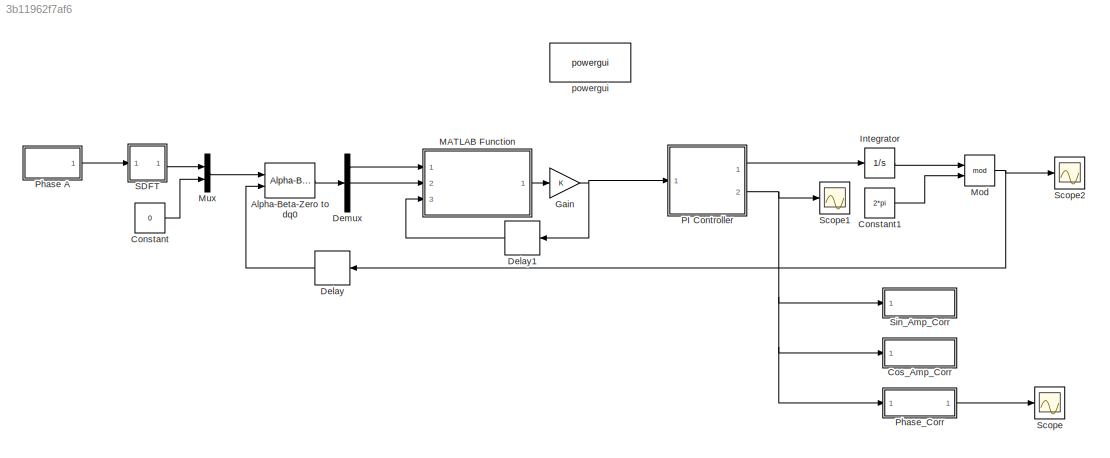
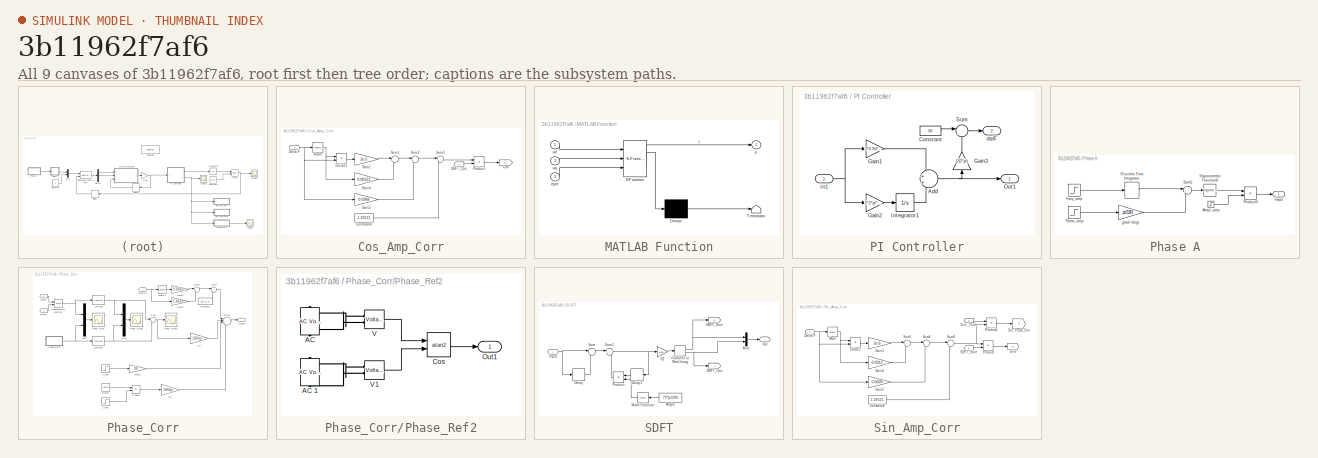
[diagram: thumbnail index - all 9 canvases of the model, root first then tree order]
MODEL slx_3b11962f7af6
KIND model
CONFIG AbsTol = auto
CONFIG EnableMultiTasking = off
CONFIG FixedStep = auto
CONFIG MaxStep = auto
CONFIG MinStep = auto
CONFIG RelTol = 1e-3
CONFIG SampleTimeConstraint = Unconstrained
CONFIG SolverName = VariableStepAuto
CONFIG StartTime = 0.0
CONFIG StopTime = 2
BLOCK [Reference] Alpha-Beta-Zero to dq0  REF=spsAlphaBetaZerotodq0Lib/Alpha-Beta-Zero
to dq0
  Ports = [2, 1]
  SourceBlock = spsAlphaBetaZerotodq0Lib/Alpha-Beta-Zero\nto dq0
  SourceProductBaseCode = PS
  SourceType = Alpha-Beta-Zero to dq0 Transformation
BLOCK [Constant] Constant
  Value = 0
BLOCK [Constant] Constant1
  Value = 2*pi
BLOCK [SubSystem] Cos_Amp_Corr
  Ports = [1]
  RequestExecContextInheritance = off
BLOCK [Constant] Cos_Amp_Corr/Constant4
  Value = 1.29521
BLOCK [Goto] Cos_Amp_Corr/Cos
  GotoTag = H1
  TagVisibility = global
BLOCK [Inport] Cos_Amp_Corr/Delta F
BLOCK [Product] Cos_Amp_Corr/Divide1
  Inputs = **
  Ports = [2, 1]
BLOCK [Gain] Cos_Amp_Corr/Gain1
  Gain = 2e-5
  RndMeth = Nearest
BLOCK [Gain] Cos_Amp_Corr/Gain4
  Gain = 0.00121
  RndMeth = Nearest
BLOCK [Gain] Cos_Amp_Corr/Gain5
  Gain = 0.0268
BLOCK [Math] Cos_Amp_Corr/Math 
  Operator = square
  Ports = [1, 1]
  SignedPower = on
BLOCK [Product] Cos_Amp_Corr/Product
  Ports = [2, 1]
BLOCK [From] Cos_Amp_Corr/SDFT_Cos
  GotoTag = C
  TagVisibility = global
BLOCK [Sum] Cos_Amp_Corr/Sum1
  Inputs = |-+
  Ports = [2, 1]
  RndMeth = Nearest
BLOCK [Sum] Cos_Amp_Corr/Sum2
  Inputs = |+-
  Ports = [2, 1]
  RndMeth = Nearest
BLOCK [Sum] Cos_Amp_Corr/Sum3
  Inputs = |++
  Ports = [2, 1]
  RndMeth = Nearest
BLOCK [Delay] Delay
  DelayLength = 1
  InitialCondition = 0
  InputPortMap = u0
  NameLocation = top
  Ports = [1, 1]
BLOCK [Delay] Delay1
  DelayLength = 1
  InitialCondition = 0
  InputPortMap = u0
  NameLocation = top
  Ports = [1, 1]
BLOCK [Demux] Demux
  Outputs = 3
  Ports = [1, 3]
BLOCK [Gain] Gain
BLOCK [Integrator] Integrator
  Ports = [1, 1]
BLOCK [SubSystem] MATLAB Function
  ErrorFcn = Stateflow.Translate.translate
  PermitHierarchicalResolution = ExplicitOnly
  Ports = [3, 1]
  RequestExecContextInheritance = off
  SFBlockType = MATLAB Function
  TreatAsAtomicUnit = on
BLOCK [Demux] MATLAB Function/ Demux 
  Outputs = 1
  Ports = [1, 1]
BLOCK [S-Function] MATLAB Function/ SFunction 
  EnableBusSupport = on
  FunctionName = sf_sfun
  PortCounts = [3 2]
  Ports = [3, 2]
  SFcnIsStateOwnerBlock = off
  SFunctionDeploymentMode = off
  Tag = Stateflow S-Function 1
BLOCK [Terminator] MATLAB Function/ Terminator 
BLOCK [Inport] MATLAB Function/epre
  Port = 3
BLOCK [Inport] MATLAB Function/ud
BLOCK [Inport] MATLAB Function/uq
  Port = 2
BLOCK [Outport] MATLAB Function/y
BLOCK [Math] Mod
  Operator = mod
  Ports = [2, 1]
  SignedPower = on
BLOCK [Mux] Mux
  DisplayOption = bar
  Inputs = 2
  Ports = [2, 1]
BLOCK [SubSystem] PI Controller
  Ports = [1, 2]
  RequestExecContextInheritance = off
BLOCK [Sum] PI Controller/Add
  Ports = [2, 1]
BLOCK [Constant] PI Controller/Constant
  Value = 50
BLOCK [Gain] PI Controller/Gain1
  Gain = 2*0.707*2*pi*6
BLOCK [Gain] PI Controller/Gain2
  Gain = 2*2*pi*pi*36
BLOCK [Gain] PI Controller/Gain3
  Gain = 1/(2*pi)
  NameLocation = right
BLOCK [Inport] PI Controller/In1
BLOCK [Integrator] PI Controller/Integrator1
  Ports = [1, 1]
BLOCK [Outport] PI Controller/Out1
BLOCK [Sum] PI Controller/Sum
  Inputs = |-+
  Ports = [2, 1]
BLOCK [Outport] PI Controller/delF
  Port = 2
BLOCK [SubSystem] Phase A
  Ports = [0, 1]
  RequestExecContextInheritance = off
BLOCK [Step] Phase A/Ampl_step
  After = 230*sqrt(2)
  Before = 230*sqrt(2)
  SampleTime = 0.0001
BLOCK [DiscreteIntegrator] Phase A/Discrete-Time Integrator
  ICPrevOutput = DiscIntNeverNeededParam
  ICPrevScaledInput = DiscIntNeverNeededParam
  Ports = [1, 1]
  SampleTime = -1
BLOCK [Step] Phase A/Freq_step
  After = 2*pi*50
  Before = 2*pi*50
  SampleTime = 0.0001
  VectorParams1D = off
BLOCK [Outport] Phase A/Input
BLOCK [Product] Phase A/Product9
  Ports = [2, 1]
  RndMeth = Zero
BLOCK [Sum] Phase A/Sum6
  InputSameDT = on
  Inputs = |++
  OutDataTypeStr = Inherit: Same as first input
  Ports = [2, 1]
  SaturateOnIntegerOverflow = on
BLOCK [Step] Phase A/Theta_step
  After = 0
  SampleTime = 0.0001
BLOCK [Trigonometry] Phase A/Trigonometric Function8
  Ports = [1, 1]
BLOCK [Gain] Phase A/grad->degr
  Gain = pi/180
  OutDataTypeStr = Inherit: Same as input
  ParamDataTypeStr = Inherit: Same as input
  SaturateOnIntegerOverflow = on
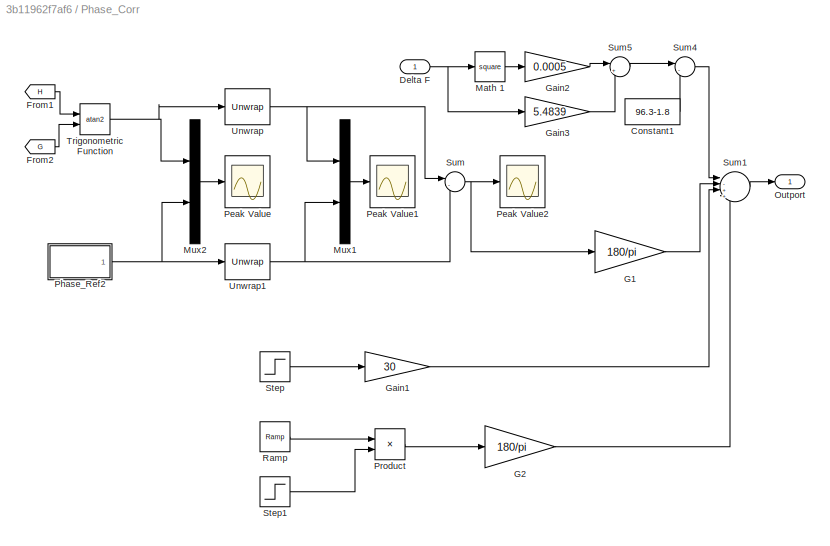
BLOCK [SubSystem] Phase_Corr
  Ports = [1, 1]
  RequestExecContextInheritance = off
BLOCK [Constant] Phase_Corr/Constant1
  Value = 96.3-1.8
BLOCK [Inport] Phase_Corr/Delta F
BLOCK [From] Phase_Corr/From1
  GotoTag = H
BLOCK [From] Phase_Corr/From2
  GotoTag = G
BLOCK [Gain] Phase_Corr/G1
  Gain = 180/pi
BLOCK [Gain] Phase_Corr/G2
  Gain = 180/pi
BLOCK [Gain] Phase_Corr/Gain1
  Gain = 30
  RndMeth = Nearest
BLOCK [Gain] Phase_Corr/Gain2
  Gain = 0.0005
  RndMeth = Nearest
BLOCK [Gain] Phase_Corr/Gain3
  Gain = 5.4839
BLOCK [Math] Phase_Corr/Math 1
  Operator = square
  Ports = [1, 1]
  SignedPower = on
BLOCK [Mux] Phase_Corr/Mux1
  DisplayOption = bar
  Inputs = 2
  Ports = [2, 1]
BLOCK [Mux] Phase_Corr/Mux2
  DisplayOption = bar
  Inputs = 2
  Ports = [2, 1]
BLOCK [Outport] Phase_Corr/Outport
BLOCK [Scope] Phase_Corr/Peak Value
  Floating = off
  NumInputPorts = 1
  Ports = [1]
  ScopeSpecificationString = Simulink.scopes.TimeScopeBlockCfg('CurrentConfiguration', extmgr.ConfigurationSet(extmgr.Configuration('Core','General UI',true),extmgr.Configuration('Core','Source UI',true),extmgr.Configuration('Sources','WiredSimulink',true,'DataLoggingLimitDataPoints',true,'DataLoggingSaveFormat','Array','DataLoggingDecimation','1','DataLoggingDecimateData',true),extmgr.Configuration('Visuals','Time Domain',tr...<+154ch>  <repeated x3 — deduplicated; at blocks: Peak Value, Peak Value1, Peak Value2>
BLOCK [Scope] Phase_Corr/Peak Value1
  Floating = off
  NumInputPorts = 1
  Ports = [1]
BLOCK [Scope] Phase_Corr/Peak Value2
  Floating = off
  NumInputPorts = 1
  Ports = [1]
BLOCK [SubSystem] Phase_Corr/Phase_Ref2
  Ports = [0, 1]
  RequestExecContextInheritance = off
BLOCK [Reference] Phase_Corr/Phase_Ref2/AC   REF=spsACVoltageSourceLib/AC Voltage Source
  NameLocation = right
  Ports = [0, 0, 0, 0, 0, 1, 1]
  SourceBlock = spsACVoltageSourceLib/AC Voltage Source
  SourceProductBaseCode = PS
  SourceType = AC Voltage Source
BLOCK [Reference] Phase_Corr/Phase_Ref2/AC 1  REF=spsACVoltageSourceLib/AC Voltage Source
  NameLocation = right
  Ports = [0, 0, 0, 0, 0, 1, 1]
  SourceBlock = spsACVoltageSourceLib/AC Voltage Source
  SourceProductBaseCode = PS
  SourceType = AC Voltage Source
BLOCK [Trigonometry] Phase_Corr/Phase_Ref2/Cos
  NumberOfIterations = 20
  Operator = atan2
  Ports = [2, 1]
BLOCK [Outport] Phase_Corr/Phase_Ref2/Out1
BLOCK [Reference] Phase_Corr/Phase_Ref2/V  REF=spsVoltageMeasurementLib/Voltage Measurement
  Ports = [0, 1, 0, 0, 0, 2]
  SourceBlock = spsVoltageMeasurementLib/Voltage Measurement
  SourceProductBaseCode = PS
  SourceType = Voltage Measurement
  UserDataPersistent = on
BLOCK [Reference] Phase_Corr/Phase_Ref2/V1  REF=spsVoltageMeasurementLib/Voltage Measurement
  Ports = [0, 1, 0, 0, 0, 2]
  SourceBlock = spsVoltageMeasurementLib/Voltage Measurement
  SourceProductBaseCode = PS
  SourceType = Voltage Measurement
  UserDataPersistent = on
BLOCK [Product] Phase_Corr/Product
  Ports = [2, 1]
BLOCK [Reference] Phase_Corr/Ramp  REF=simulink/Sources/Ramp
  Ports = [0, 1]
  SourceBlock = simulink/Sources/Ramp
  SourceProductBaseCode = SL
  SourceType = Ramp
BLOCK [Step] Phase_Corr/Step
  SampleTime = 1/(10000)
  Time = 0.65
BLOCK [Step] Phase_Corr/Step1
  SampleTime = 1/10000
  Time = 0.65
BLOCK [Sum] Phase_Corr/Sum
  Inputs = |-+
  Ports = [2, 1]
BLOCK [Sum] Phase_Corr/Sum1
  Inputs = |-+++
  Ports = [4, 1]
BLOCK [Sum] Phase_Corr/Sum4
  Inputs = |-+
  Ports = [2, 1]
  RndMeth = Nearest
BLOCK [Sum] Phase_Corr/Sum5
  Inputs = |+-
  Ports = [2, 1]
  RndMeth = Nearest
BLOCK [Trigonometry] Phase_Corr/Trigonometric Function
  Operator = atan2
  Ports = [2, 1]
BLOCK [Reference] Phase_Corr/Unwrap  REF=dspsigops/Unwrap
  Ports = [1, 1]
  SourceBlock = dspsigops/Unwrap
  SourceProductBaseCode = DS
  SourceType = Unwrap
  UserDataPersistent = on
BLOCK [Reference] Phase_Corr/Unwrap1  REF=dspsigops/Unwrap
  Ports = [1, 1]
  SourceBlock = dspsigops/Unwrap
  SourceProductBaseCode = DS
  SourceType = Unwrap
  UserDataPersistent = on
BLOCK [SubSystem] SDFT
  Ports = [1, 1]
  RequestExecContextInheritance = off
BLOCK [Constant] SDFT/Angle
  NameLocation = top
  Value = i*2*pi/200
BLOCK [ComplexToRealImag] SDFT/Complex to Real-Imag
  Ports = [1, 2]
BLOCK [Delay] SDFT/Delay
  DelayLength = 200
  InitialCondition = 0
  InputPortMap = u0
  Ports = [1, 1]
BLOCK [Delay] SDFT/Delay1
  DelayLength = 1
  InitialCondition = 0
  InputPortMap = u0
  NameLocation = top
  Ports = [1, 1]
BLOCK [Gain] SDFT/G2
  Gain = 2/200
BLOCK [Inport] SDFT/Input
BLOCK [Math] SDFT/Math Function
  NameLocation = top
  Ports = [1, 1]
  SignedPower = on
BLOCK [Mux] SDFT/Mux
  DisplayOption = bar
  Inputs = 2
  Ports = [2, 1]
BLOCK [Outport] SDFT/Out
BLOCK [Product] SDFT/Product
  NameLocation = top
  Ports = [2, 1]
BLOCK [Goto] SDFT/SDFT_Cos
  GotoTag = C
  TagVisibility = global
BLOCK [Goto] SDFT/SDFT_Sine
  GotoTag = B
  TagVisibility = global
BLOCK [Sum] SDFT/Sum
  Inputs = |+-
  Ports = [2, 1]
BLOCK [Sum] SDFT/Sum1
  Inputs = |++
  Ports = [2, 1]
BLOCK [Scope] Scope
  Floating = off
  NumInputPorts = 1
  Ports = [1]
  ScopeSpecificationString = Simulink.scopes.TimeScopeBlockCfg('CurrentConfiguration', extmgr.ConfigurationSet(extmgr.Configuration('Core','General UI',true),extmgr.Configuration('Core','Source UI',true),extmgr.Configuration('Sources','WiredSimulink',true,'DataLoggingVariableName','ScopeData1'),extmgr.Configuration('Visuals','Time Domain',true,'SerializedDisplays',{struct('MinYLimReal','-4520.03103','MaxYLimReal','40870.15381...<+1449ch>
BLOCK [Scope] Scope1
  Floating = off
  NumInputPorts = 1
  Ports = [1]
  ScopeSpecificationString = Simulink.scopes.TimeScopeBlockCfg('CurrentConfiguration', extmgr.ConfigurationSet(extmgr.Configuration('Core','General UI',true),extmgr.Configuration('Core','Source UI',true),extmgr.Configuration('Sources','WiredSimulink',true,'DataLoggingVariableName','ScopeData2'),extmgr.Configuration('Visuals','Time Domain',true,'SerializedDisplays',{struct('MinYLimReal','-57.50818','MaxYLimReal','17.57361','YL...<+1434ch>
BLOCK [Scope] Scope2
  Floating = off
  NumInputPorts = 1
  Ports = [1]
  ScopeSpecificationString = Simulink.scopes.TimeScopeBlockCfg('CurrentConfiguration', extmgr.ConfigurationSet(extmgr.Configuration('Core','General UI',true),extmgr.Configuration('Core','Source UI',true),extmgr.Configuration('Sources','WiredSimulink',true,'DataLoggingVariableName','ScopeData3'),extmgr.Configuration('Visuals','Time Domain',true,'SerializedDisplays',{struct('MinYLimReal','-0.7852','MaxYLimReal','7.06679','YLabe...<+1460ch>
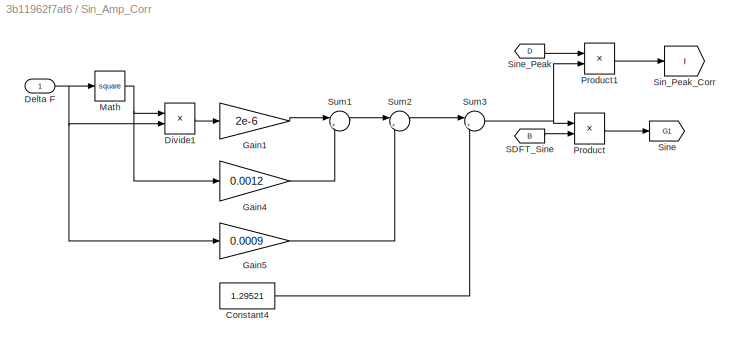
BLOCK [SubSystem] Sin_Amp_Corr
  Ports = [1]
  RequestExecContextInheritance = off
BLOCK [Constant] Sin_Amp_Corr/Constant4
  Value = 1.29521
BLOCK [Inport] Sin_Amp_Corr/Delta F
BLOCK [Product] Sin_Amp_Corr/Divide1
  Inputs = **
  Ports = [2, 1]
BLOCK [Gain] Sin_Amp_Corr/Gain1
  Gain = 2e-6
  RndMeth = Nearest
BLOCK [Gain] Sin_Amp_Corr/Gain4
  Gain = 0.0012
  RndMeth = Nearest
BLOCK [Gain] Sin_Amp_Corr/Gain5
  Gain = 0.0009
BLOCK [Math] Sin_Amp_Corr/Math 
  Operator = square
  Ports = [1, 1]
  SignedPower = on
BLOCK [Product] Sin_Amp_Corr/Product
  Ports = [2, 1]
BLOCK [Product] Sin_Amp_Corr/Product1
  Commented = on
  Ports = [2, 1]
BLOCK [From] Sin_Amp_Corr/SDFT_Sine
  GotoTag = B
  TagVisibility = global
BLOCK [Goto] Sin_Amp_Corr/Sin_Peak_Corr
  Commented = on
  GotoTag = I
  TagVisibility = global
BLOCK [Goto] Sin_Amp_Corr/Sine
  GotoTag = G1
  TagVisibility = global
BLOCK [From] Sin_Amp_Corr/Sine_Peak
  Commented = on
  GotoTag = D
  TagVisibility = global
BLOCK [Sum] Sin_Amp_Corr/Sum1
  Inputs = |++
  Ports = [2, 1]
  RndMeth = Nearest
BLOCK [Sum] Sin_Amp_Corr/Sum2
  Inputs = |+-
  Ports = [2, 1]
  RndMeth = Nearest
BLOCK [Sum] Sin_Amp_Corr/Sum3
  Inputs = |++
  Ports = [2, 1]
  RndMeth = Nearest
BLOCK [Reference] powergui  REF=spspowerguiLib/powergui
  Ports = []
  Priority = 1
  SourceBlock = spspowerguiLib/powergui
  SourceProductBaseCode = PS
  SourceType = PSB option menu block
LINE Alpha-Beta-Zero to dq0:1 -> Demux:1
LINE Constant1:1 -> Mod:2
LINE Constant:1 -> Mux:2
LINE Cos_Amp_Corr/Constant4:1 -> Cos_Amp_Corr/Sum3:2
NET Cos_Amp_Corr/Delta F:1 -> Cos_Amp_Corr/Divide1:2, Cos_Amp_Corr/Gain5:1, Cos_Amp_Corr/Math :1
LINE Cos_Amp_Corr/Divide1:1 -> Cos_Amp_Corr/Gain1:1
LINE Cos_Amp_Corr/Gain1:1 -> Cos_Amp_Corr/Sum1:1
LINE Cos_Amp_Corr/Gain4:1 -> Cos_Amp_Corr/Sum1:2
LINE Cos_Amp_Corr/Gain5:1 -> Cos_Amp_Corr/Sum2:2
NET Cos_Amp_Corr/Math :1 -> Cos_Amp_Corr/Divide1:1, Cos_Amp_Corr/Gain4:1
LINE Cos_Amp_Corr/Product:1 -> Cos_Amp_Corr/Cos:1
LINE Cos_Amp_Corr/SDFT_Cos:1 -> Cos_Amp_Corr/Product:2
LINE Cos_Amp_Corr/Sum1:1 -> Cos_Amp_Corr/Sum2:1
LINE Cos_Amp_Corr/Sum2:1 -> Cos_Amp_Corr/Sum3:1
LINE Cos_Amp_Corr/Sum3:1 -> Cos_Amp_Corr/Product:1
LINE Delay1:1 -> MATLAB Function:3
LINE Delay:1 -> Alpha-Beta-Zero to dq0:2
LINE Demux:1 -> MATLAB Function:1
LINE Demux:2 -> MATLAB Function:2
NET Gain:1 -> Delay1:1, PI Controller:1
LINE Integrator:1 -> Mod:1
LINE MATLAB Function:1 -> Gain:1
NET Mod:1 -> Delay:1, Scope2:1
LINE Mux:1 -> Alpha-Beta-Zero to dq0:1
NET PI Controller/Add:1 -> PI Controller/Gain3:1, PI Controller/Out1:1
LINE PI Controller/Constant:1 -> PI Controller/Sum:1
LINE PI Controller/Gain1:1 -> PI Controller/Add:1
LINE PI Controller/Gain2:1 -> PI Controller/Integrator1:1
LINE PI Controller/Gain3:1 -> PI Controller/Sum:2
NET PI Controller/In1:1 -> PI Controller/Gain1:1, PI Controller/Gain2:1
LINE PI Controller/Integrator1:1 -> PI Controller/Add:2
LINE PI Controller/Sum:1 -> PI Controller/delF:1
LINE PI Controller:1 -> Integrator:1
NET PI Controller:2 -> Cos_Amp_Corr:1, Phase_Corr:1, Scope1:1, Sin_Amp_Corr:1
LINE Phase A/Ampl_step:1 -> Phase A/Product9:2
LINE Phase A/Discrete-Time Integrator:1 -> Phase A/Sum6:1
LINE Phase A/Freq_step:1 -> Phase A/Discrete-Time Integrator:1
LINE Phase A/Product9:1 -> Phase A/Input:1
LINE Phase A/Sum6:1 -> Phase A/Trigonometric Function8:1
LINE Phase A/Theta_step:1 -> Phase A/grad->degr:1
LINE Phase A/Trigonometric Function8:1 -> Phase A/Product9:1
LINE Phase A/grad->degr:1 -> Phase A/Sum6:2
LINE Phase A:1 -> SDFT:1
LINE Phase_Corr/Constant1:1 -> Phase_Corr/Sum4:2
NET Phase_Corr/Delta F:1 -> Phase_Corr/Gain3:1, Phase_Corr/Math 1:1
LINE Phase_Corr/From1:1 -> Phase_Corr/Trigonometric Function:1
LINE Phase_Corr/From2:1 -> Phase_Corr/Trigonometric Function:2
LINE Phase_Corr/G1:1 -> Phase_Corr/Sum1:2
LINE Phase_Corr/G2:1 -> Phase_Corr/Sum1:4
LINE Phase_Corr/Gain1:1 -> Phase_Corr/Sum1:3
LINE Phase_Corr/Gain2:1 -> Phase_Corr/Sum5:1
LINE Phase_Corr/Gain3:1 -> Phase_Corr/Sum5:2
LINE Phase_Corr/Math 1:1 -> Phase_Corr/Gain2:1
LINE Phase_Corr/Mux1:1 -> Phase_Corr/Peak Value1:1
LINE Phase_Corr/Mux2:1 -> Phase_Corr/Peak Value:1
LINE Phase_Corr/Phase_Ref2/Cos:1 -> Phase_Corr/Phase_Ref2/Out1:1
LINE Phase_Corr/Phase_Ref2/V1:1 -> Phase_Corr/Phase_Ref2/Cos:2
LINE Phase_Corr/Phase_Ref2/V:1 -> Phase_Corr/Phase_Ref2/Cos:1
NET Phase_Corr/Phase_Ref2:1 -> Phase_Corr/Mux2:2, Phase_Corr/Unwrap1:1
LINE Phase_Corr/Product:1 -> Phase_Corr/G2:1
LINE Phase_Corr/Ramp:1 -> Phase_Corr/Product:1
LINE Phase_Corr/Step1:1 -> Phase_Corr/Product:2
LINE Phase_Corr/Step:1 -> Phase_Corr/Gain1:1
LINE Phase_Corr/Sum1:1 -> Phase_Corr/Outport:1
LINE Phase_Corr/Sum4:1 -> Phase_Corr/Sum1:1
LINE Phase_Corr/Sum5:1 -> Phase_Corr/Sum4:1
NET Phase_Corr/Sum:1 -> Phase_Corr/G1:1, Phase_Corr/Peak Value2:1
NET Phase_Corr/Trigonometric Function:1 -> Phase_Corr/Mux2:1, Phase_Corr/Unwrap:1
NET Phase_Corr/Unwrap1:1 -> Phase_Corr/Mux1:2, Phase_Corr/Sum:2
NET Phase_Corr/Unwrap:1 -> Phase_Corr/Mux1:1, Phase_Corr/Sum:1
LINE Phase_Corr:1 -> Scope:1
LINE SDFT/Angle:1 -> SDFT/Math Function:1
NET SDFT/Complex to Real-Imag:1 -> SDFT/Mux:1, SDFT/SDFT_Sine:1
NET SDFT/Complex to Real-Imag:2 -> SDFT/Mux:2, SDFT/SDFT_Cos:1
LINE SDFT/Delay1:1 -> SDFT/Product:1
LINE SDFT/Delay:1 -> SDFT/Sum:2
LINE SDFT/G2:1 -> SDFT/Complex to Real-Imag:1
NET SDFT/Input:1 -> SDFT/Delay:1, SDFT/Sum:1
LINE SDFT/Math Function:1 -> SDFT/Product:2
LINE SDFT/Mux:1 -> SDFT/Out:1
LINE SDFT/Product:1 -> SDFT/Sum1:2
NET SDFT/Sum1:1 -> SDFT/Delay1:1, SDFT/G2:1
LINE SDFT/Sum:1 -> SDFT/Sum1:1
LINE SDFT:1 -> Mux:1
LINE Sin_Amp_Corr/Constant4:1 -> Sin_Amp_Corr/Sum3:2
NET Sin_Amp_Corr/Delta F:1 -> Sin_Amp_Corr/Divide1:2, Sin_Amp_Corr/Gain5:1, Sin_Amp_Corr/Math :1
LINE Sin_Amp_Corr/Divide1:1 -> Sin_Amp_Corr/Gain1:1
LINE Sin_Amp_Corr/Gain1:1 -> Sin_Amp_Corr/Sum1:1
LINE Sin_Amp_Corr/Gain4:1 -> Sin_Amp_Corr/Sum1:2
LINE Sin_Amp_Corr/Gain5:1 -> Sin_Amp_Corr/Sum2:2
NET Sin_Amp_Corr/Math :1 -> Sin_Amp_Corr/Divide1:1, Sin_Amp_Corr/Gain4:1
LINE Sin_Amp_Corr/Product1:1 -> Sin_Amp_Corr/Sin_Peak_Corr:1
LINE Sin_Amp_Corr/Product:1 -> Sin_Amp_Corr/Sine:1
LINE Sin_Amp_Corr/SDFT_Sine:1 -> Sin_Amp_Corr/Product:2
LINE Sin_Amp_Corr/Sine_Peak:1 -> Sin_Amp_Corr/Product1:1
LINE Sin_Amp_Corr/Sum1:1 -> Sin_Amp_Corr/Sum2:1
LINE Sin_Amp_Corr/Sum2:1 -> Sin_Amp_Corr/Sum3:1
NET Sin_Amp_Corr/Sum3:1 -> Sin_Amp_Corr/Product1:2, Sin_Amp_Corr/Product:1
PLINE Phase_Corr/Phase_Ref2/AC 1:LConn1 -- Phase_Corr/Phase_Ref2/V1:LConn2
PLINE Phase_Corr/Phase_Ref2/AC 1:RConn1 -- Phase_Corr/Phase_Ref2/V1:LConn1
PLINE Phase_Corr/Phase_Ref2/AC :LConn1 -- Phase_Corr/Phase_Ref2/V:LConn2
PLINE Phase_Corr/Phase_Ref2/AC :RConn1 -- Phase_Corr/Phase_Ref2/V:LConn1
note: NET lines group one-source signal fan-out (src -> all destinations, sorted); 1:1 wires keep LINE
CHART MATLAB Function states=1 transitions=1
  STATE_LABEL 'eML_blk_kernel()'
  STATE_LABEL 'SCRIPT:\nfunction y = Error_Unwrap(ud,uq,epre)\nzone=0;\ne=atan2(uq,ud);\nerror = e+(2*pi*zone)-epre; \nif(error<-pi)\n    zone=zone+1;\nend\nif(error>pi)\n    zone=zone-1;\nend\ne = e+(2*pi*zone);\nepre=e;\ny = epre;\n'
CHART  states=0 transitions=0
